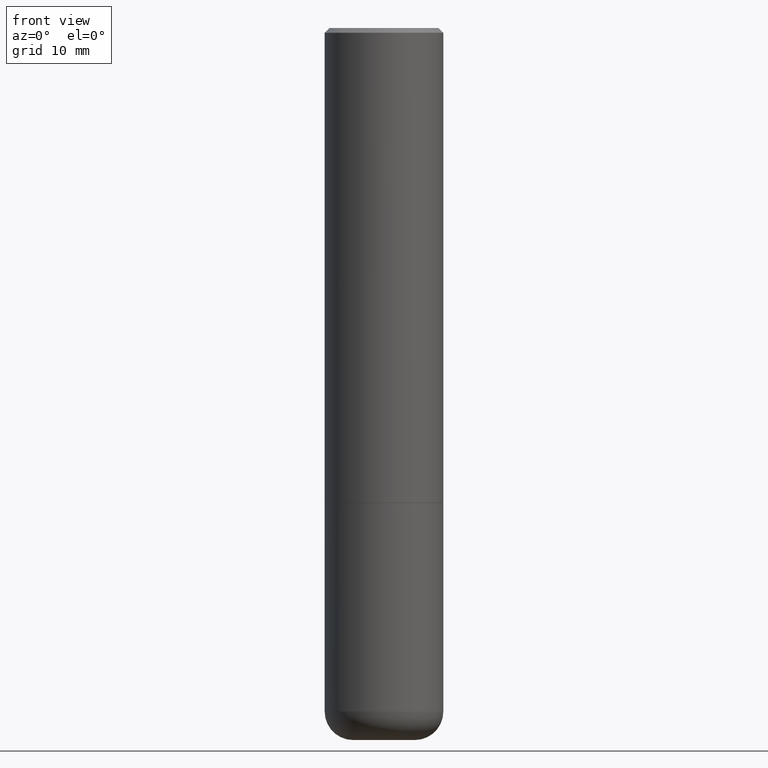
[diagram: clean part render]
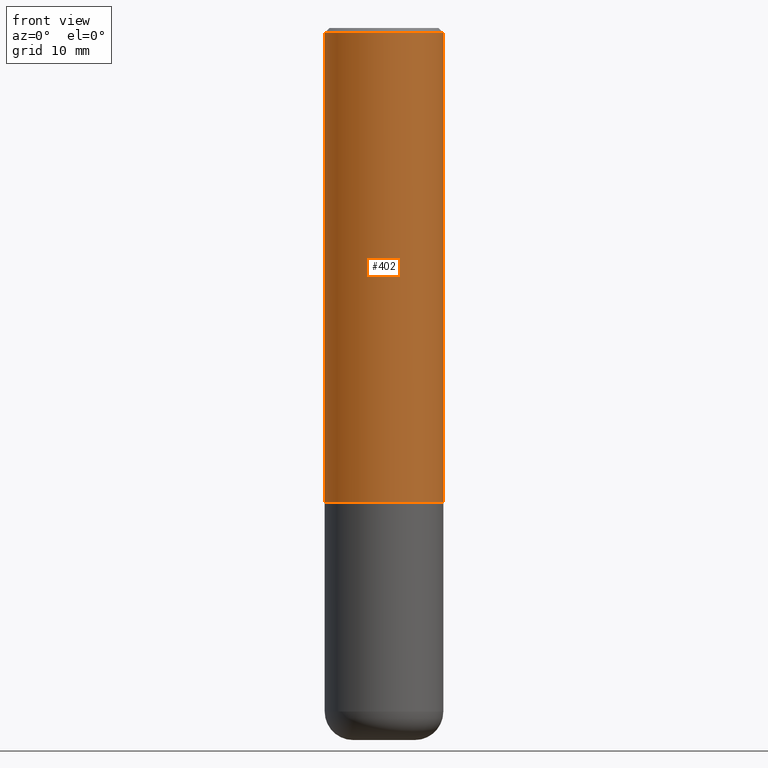
[diagram: same view with one face highlighted and labeled with its STEP entity id]
A machine part, front view. The second image highlights one B-rep face of the part: STEP entity #402.
In plain terms, the highlighted cylindrical surface (partial cylindrical patch) has radius 6.35 mm, axis along (-0, 0, 1).
Its self-contained STEP definition (entity closure, byte-faithful):
#6 = DIRECTION ( 'NONE',  ( -2.445468806185136597E-29, 3.491481338843145583E-15, 1.000000000000000000 ) ) ;
#8 = CYLINDRICAL_SURFACE ( 'NONE', #22, 0.2500000000000001110 ) ;
#9 = EDGE_CURVE ( 'NONE', #396, #68, #80, .T. ) ;
#10 = LINE ( 'NONE', #102, #81 ) ;
#14 = AXIS2_PLACEMENT_3D ( 'NONE', #395, #6, #104 ) ;
#22 = AXIS2_PLACEMENT_3D ( 'NONE', #203, #107, #231 ) ;
#28 = CARTESIAN_POINT ( 'NONE',  ( 4.890937612370287172E-31, -6.982962677686310098E-17, -0.02000000000000005593 ) ) ;
#52 = DIRECTION ( 'NONE',  ( -2.445468806185136597E-29, 3.491481338843145583E-15, 1.000000000000000000 ) ) ;
#55 = EDGE_LOOP ( 'NONE', ( #415, #94, #290, #260 ) ) ;
#56 = AXIS2_PLACEMENT_3D ( 'NONE', #28, #52, #366 ) ;
#68 = VERTEX_POINT ( 'NONE', #141 ) ;
#70 = VERTEX_POINT ( 'NONE', #405 ) ;
#76 = CARTESIAN_POINT ( 'NONE',  ( -0.2500000000000000000, 1.675911042644703577E-15, -0.02000000000000005593 ) ) ;
#80 = CIRCLE ( 'NONE', #56, 0.2500000000000000000 ) ;
#81 = VECTOR ( 'NONE', #165, 39.37007874015748143 ) ;
#94 = ORIENTED_EDGE ( 'NONE', *, *, #388, .T. ) ;
#102 = CARTESIAN_POINT ( 'NONE',  ( -0.2500000000000001110, 1.776356839400251254E-15, -1.229733772563727146E-29 ) ) ;
#104 = DIRECTION ( 'NONE',  ( 1.000000000000000000, -6.982962677686268288E-15, 0.000000000000000000 ) ) ;
#107 = DIRECTION ( 'NONE',  ( -2.445468806185136597E-29, 3.491481338843145583E-15, 1.000000000000000000 ) ) ;
#111 = EDGE_CURVE ( 'NONE', #244, #68, #271, .T. ) ;
#121 = CARTESIAN_POINT ( 'NONE',  ( 0.2500000000000002220, -8.725211865769017202E-15, -1.999000000000000110 ) ) ;
#131 = CIRCLE ( 'NONE', #14, 0.2500000000000002220 ) ;
#141 = CARTESIAN_POINT ( 'NONE',  ( 0.2500000000000000000, -1.784954126219746189E-15, -0.02000000000000005593 ) ) ;
#165 = DIRECTION ( 'NONE',  ( -2.445468806185136877E-29, 3.491481338843145188E-15, 1.000000000000000000 ) ) ;
#169 = FACE_OUTER_BOUND ( 'NONE', #55, .T. ) ;
#188 = DIRECTION ( 'NONE',  ( -2.445468806185136877E-29, 3.491481338843145188E-15, 1.000000000000000000 ) ) ;
#203 = CARTESIAN_POINT ( 'NONE',  ( 0.000000000000000000, 0.000000000000000000, 0.000000000000000000 ) ) ;
#219 = CARTESIAN_POINT ( 'NONE',  ( 0.2500000000000001110, -1.745740669421567664E-15, 1.219044193948984649E-29 ) ) ;
#231 = DIRECTION ( 'NONE',  ( 1.000000000000000000, -6.982962677686267499E-15, 4.876176775795936353E-29 ) ) ;
#244 = VERTEX_POINT ( 'NONE', #121 ) ;
#260 = ORIENTED_EDGE ( 'NONE', *, *, #9, .F. ) ;
#271 = LINE ( 'NONE', #219, #406 ) ;
#290 = ORIENTED_EDGE ( 'NONE', *, *, #111, .T. ) ;
#366 = DIRECTION ( 'NONE',  ( 1.000000000000000000, -6.982962677686266711E-15, 0.000000000000000000 ) ) ;
#381 = EDGE_CURVE ( 'NONE', #70, #396, #10, .T. ) ;
#388 = EDGE_CURVE ( 'NONE', #70, #244, #131, .T. ) ;
#395 = CARTESIAN_POINT ( 'NONE',  ( 4.888492143564088712E-29, -6.979471196347448158E-15, -1.999000000000000110 ) ) ;
#396 = VERTEX_POINT ( 'NONE', #76 ) ;
#402 = ADVANCED_FACE ( 'NONE', ( #169 ), #8, .T. ) ;
#405 = CARTESIAN_POINT ( 'NONE',  ( -0.2500000000000002220, -1.748293572161901516E-15, -1.999000000000000110 ) ) ;
#406 = VECTOR ( 'NONE', #188, 39.37007874015748143 ) ;
#415 = ORIENTED_EDGE ( 'NONE', *, *, #381, .F. ) ;